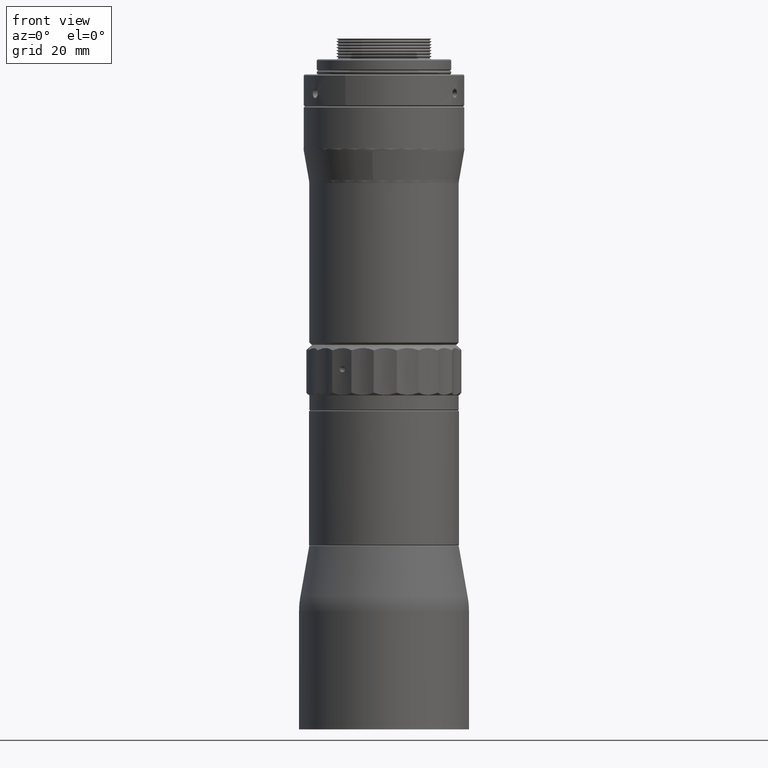
[diagram: clean part render]
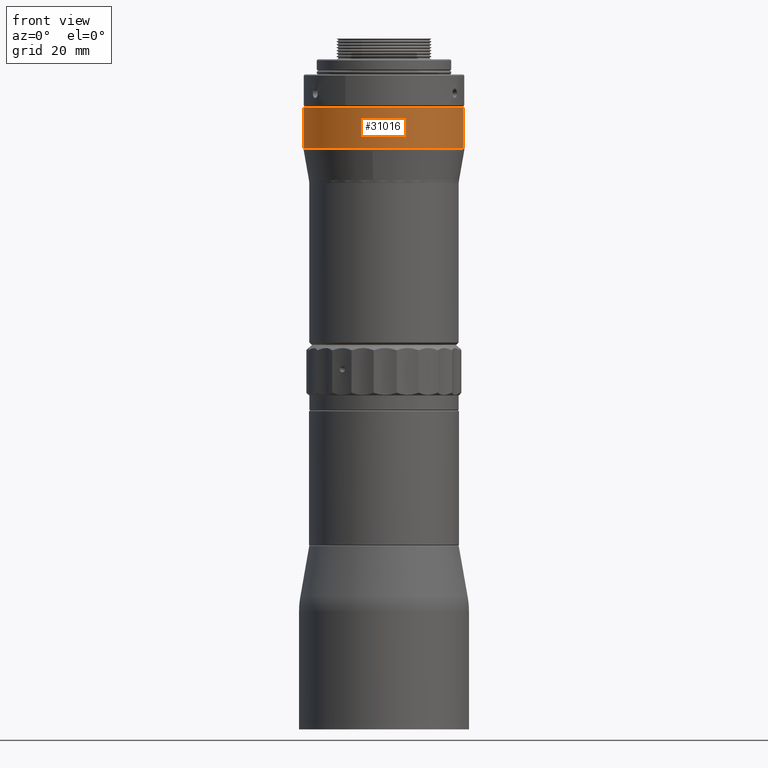
[diagram: same view with one face highlighted and labeled with its STEP entity id]
A machine part, front view. The second image highlights one B-rep face of the part: STEP entity #31016.
In plain terms, the highlighted cylindrical surface (partial cylindrical patch) has radius 21.5 mm, axis along (0, 0, -1).
Its self-contained STEP definition (entity closure, byte-faithful):
#474 = DIRECTION ( 'NONE',  ( 3.967215546937156200E-018, 2.717644169619216600E-017, -1.000000000000000000 ) ) ;
#5506 = VECTOR ( 'NONE', #32376, 1000.000000000000000 ) ;
#5893 = VECTOR ( 'NONE', #69927, 1000.000000000000000 ) ;
#6999 = ORIENTED_EDGE ( 'NONE', *, *, #65911, .T. ) ;
#8160 = ORIENTED_EDGE ( 'NONE', *, *, #63879, .F. ) ;
#8372 = CARTESIAN_POINT ( 'NONE',  ( -1.249000902703301100E-013, 0.0000000000000000000, 66.17319187569492600 ) ) ;
#12836 = ORIENTED_EDGE ( 'NONE', *, *, #63237, .T. ) ;
#14806 = ORIENTED_EDGE ( 'NONE', *, *, #35816, .F. ) ;
#17207 = CARTESIAN_POINT ( 'NONE',  ( -1.249000902703301100E-013, 0.0000000000000000000, -7.500000550267560400 ) ) ;
#17853 = EDGE_LOOP ( 'NONE', ( #8160, #6999, #12836, #14806 ) ) ;
#19523 = DIRECTION ( 'NONE',  ( 0.9895122543808221300, -0.1444489474872815700, 0.0000000000000000000 ) ) ;
#21353 = AXIS2_PLACEMENT_3D ( 'NONE', #8372, #69347, #19523 ) ;
#22418 = CIRCLE ( 'NONE', #25230, 21.50000073015667800 ) ;
#22770 = DIRECTION ( 'NONE',  ( 0.9895122543808221300, -0.1444489474872815700, 0.0000000000000000000 ) ) ;
#23558 = CARTESIAN_POINT ( 'NONE',  ( 21.27451419168652100, -3.105652476446918900, 66.17319187569492600 ) ) ;
#24703 = CARTESIAN_POINT ( 'NONE',  ( 21.27451419168652400, -3.105652476446918900, 76.92882109615494800 ) ) ;
#25230 = AXIS2_PLACEMENT_3D ( 'NONE', #65600, #49393, #37749 ) ;
#25253 = CARTESIAN_POINT ( 'NONE',  ( -21.27451419168678400, 3.105652476446915300, -7.500000550267560400 ) ) ;
#28127 = AXIS2_PLACEMENT_3D ( 'NONE', #17207, #474, #22770 ) ;
#28670 = CIRCLE ( 'NONE', #21353, 21.50000073015667800 ) ;
#31016 = ADVANCED_FACE ( 'NONE', ( #48093 ), #44571, .T. ) ;
#32376 = DIRECTION ( 'NONE',  ( 3.967215546937156200E-018, 2.717644169619216600E-017, -1.000000000000000000 ) ) ;
#35812 = VERTEX_POINT ( 'NONE', #54845 ) ;
#35816 = EDGE_CURVE ( 'NONE', #66438, #40233, #67398, .T. ) ;
#37081 = CARTESIAN_POINT ( 'NONE',  ( -21.27451419168677700, 3.105652476446912200, 76.92882109615494800 ) ) ;
#37749 = DIRECTION ( 'NONE',  ( 0.1444489474872815400, 0.9895122543808219100, -5.163827846144756800E-015 ) ) ;
#40233 = VERTEX_POINT ( 'NONE', #23558 ) ;
#44571 = CYLINDRICAL_SURFACE ( 'NONE', #28127, 21.50000073015667800 ) ;
#45994 = LINE ( 'NONE', #25253, #5893 ) ;
#48093 = FACE_OUTER_BOUND ( 'NONE', #17853, .T. ) ;
#49393 = DIRECTION ( 'NONE',  ( 3.689875331436251100E-016, 2.527659024940382900E-015, 1.000000000000000000 ) ) ;
#54845 = CARTESIAN_POINT ( 'NONE',  ( -21.27451419168677300, 3.105652476446916700, 66.17319187569492600 ) ) ;
#63237 = EDGE_CURVE ( 'NONE', #35812, #40233, #28670, .T. ) ;
#63879 = EDGE_CURVE ( 'NONE', #69543, #66438, #22418, .T. ) ;
#65156 = CARTESIAN_POINT ( 'NONE',  ( 21.27451419168653100, -3.105652476446917600, -7.500000550267560400 ) ) ;
#65600 = CARTESIAN_POINT ( 'NONE',  ( -1.249000902703301100E-013, 0.0000000000000000000, 76.92882109615494800 ) ) ;
#65911 = EDGE_CURVE ( 'NONE', #69543, #35812, #45994, .T. ) ;
#66438 = VERTEX_POINT ( 'NONE', #24703 ) ;
#67398 = LINE ( 'NONE', #65156, #5506 ) ;
#69347 = DIRECTION ( 'NONE',  ( -3.967215546937156200E-018, -2.717644169619216600E-017, 1.000000000000000000 ) ) ;
#69543 = VERTEX_POINT ( 'NONE', #37081 ) ;
#69927 = DIRECTION ( 'NONE',  ( 3.967215546937156200E-018, 2.717644169619216600E-017, -1.000000000000000000 ) ) ;